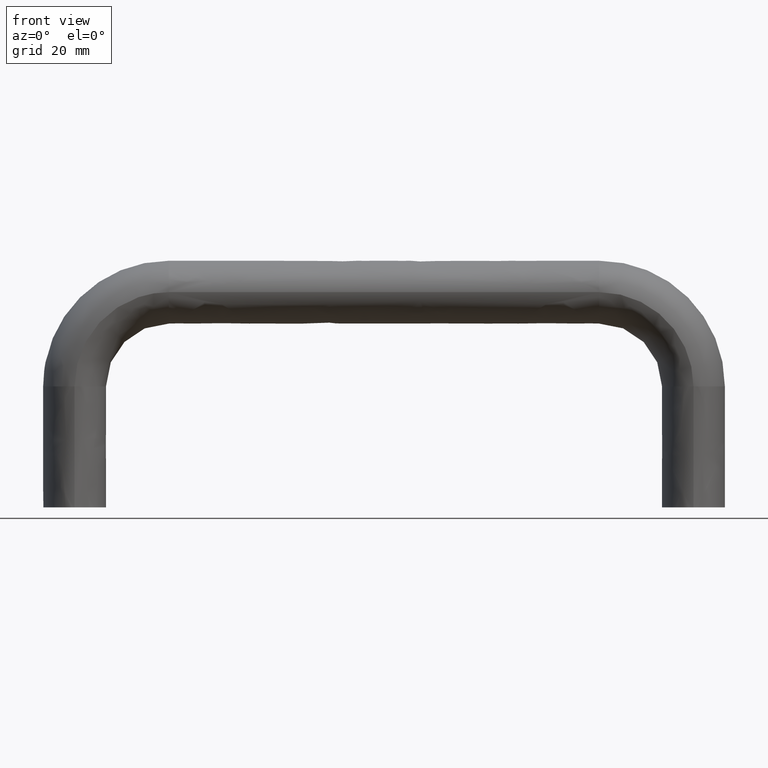
[diagram: clean part render]
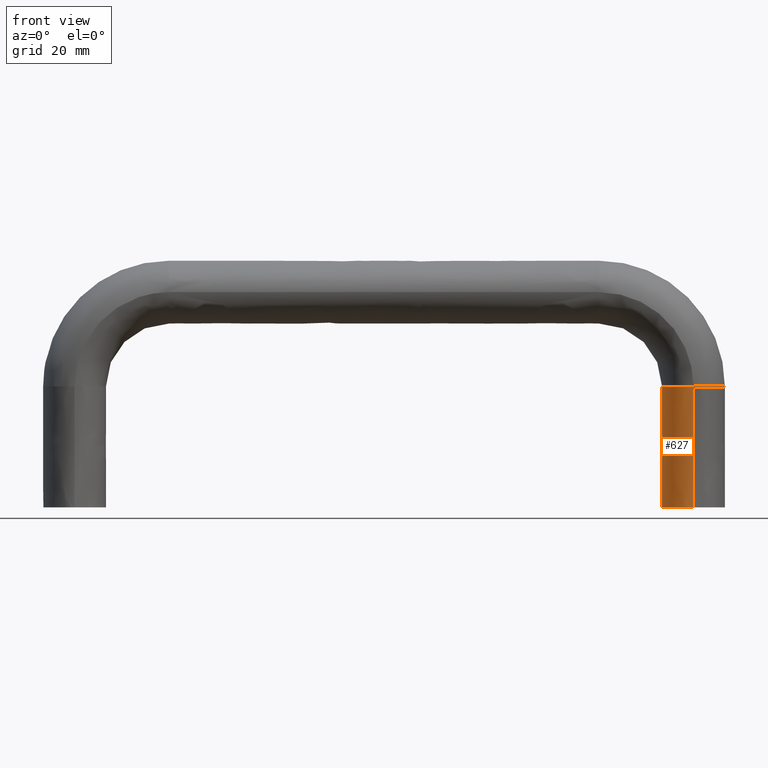
[diagram: same view with one face highlighted and labeled with its STEP entity id]
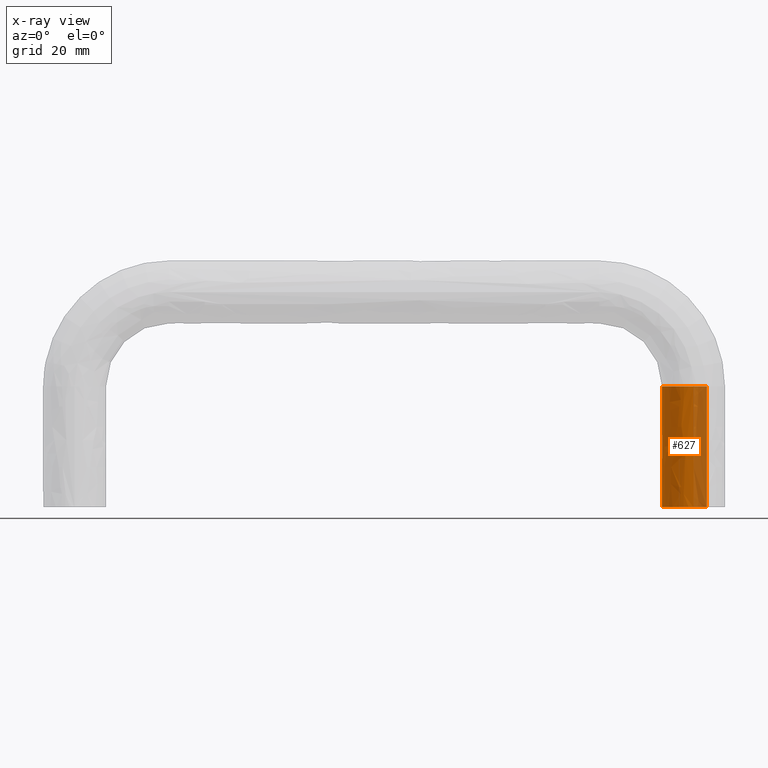
[diagram: x-ray of the same camera — body ghosted, the highlighted face saturated]
A machine part, front view. The second image highlights one B-rep face of the part: STEP entity #627.
The next image is the same camera in x-ray: the body ghosted, the highlighted face saturated — about 30% of this face is hidden behind the body in this view.
In plain terms, the highlighted face is a freeform B-spline surface patch.
Its self-contained STEP definition (entity closure, byte-faithful):
#457=CARTESIAN_POINT('',(130.765148685643200,9.039503756692850,25.0));
#458=VERTEX_POINT('',#457);
#459=CARTESIAN_POINT('',(128.000006999999810,-10.0,25.0));
#460=VERTEX_POINT('',#459);
#474=CARTESIAN_POINT('',(128.000006999999810,-10.0,2.244912E-030));
#475=VERTEX_POINT('',#474);
#476=CARTESIAN_POINT('',(128.000006999999810,-10.0,25.0));
#477=CARTESIAN_POINT('',(128.000113633782490,-10.0,16.666666669802851));
#478=CARTESIAN_POINT('',(128.000006999999810,-10.0,8.333333330977924));
#479=CARTESIAN_POINT('',(128.000006999999810,-10.0,9.022597E-030));
#480=B_SPLINE_CURVE_WITH_KNOTS('',3,(#476,#477,#478,#479),.UNSPECIFIED.,.F.,.U.,(4,4),(0.875162952136151,1.0),.UNSPECIFIED.);
#481=EDGE_CURVE('',#460,#475,#480,.T.);
#483=CARTESIAN_POINT('',(130.767738322028010,9.043088328509544,-2.464482E-016));
#484=VERTEX_POINT('',#483);
#503=CARTESIAN_POINT('',(130.765148685643200,9.039503756692850,25.0));
#504=CARTESIAN_POINT('',(130.766125675659200,9.040698613964571,16.666666670234040));
#505=CARTESIAN_POINT('',(130.766875109900010,9.041893471237698,8.333333330654064));
#506=CARTESIAN_POINT('',(130.767738322028010,9.043088328509544,-2.464482E-016));
#507=B_SPLINE_CURVE_WITH_KNOTS('',3,(#503,#504,#505,#506),.UNSPECIFIED.,.F.,.U.,(4,4),(0.875162952136151,1.0),.UNSPECIFIED.);
#508=EDGE_CURVE('',#458,#484,#507,.T.);
#513=CARTESIAN_POINT('',(128.000006999999810,-10.0,25.0));
#514=CARTESIAN_POINT('',(126.298310979305400,-10.0,25.0));
#515=CARTESIAN_POINT('',(124.607093718038400,-8.922269036098131,25.0));
#516=CARTESIAN_POINT('',(122.200532126536000,-5.219866587632820,25.0));
#517=CARTESIAN_POINT('',(121.500006999999800,-2.617993877991495,25.0));
#518=CARTESIAN_POINT('',(121.500006999999800,2.617993877991495,25.0));
#519=CARTESIAN_POINT('',(122.200532126536000,5.219866587632830,25.0));
#520=CARTESIAN_POINT('',(124.607093718038400,8.922269036098131,25.0));
#521=CARTESIAN_POINT('',(126.298310979305400,10.0,25.0));
#522=CARTESIAN_POINT('',(128.952956771588700,10.0,25.0));
#523=CARTESIAN_POINT('',(129.902620404221100,9.662023569720375,25.0));
#524=CARTESIAN_POINT('',(130.765148685384700,9.039503756879462,25.0));
#525=CARTESIAN_POINT('',(128.000113633782490,-10.0,16.666666669802851));
#526=CARTESIAN_POINT('',(126.298412942534990,-10.0,16.666666669528649));
#527=CARTESIAN_POINT('',(124.607190375280000,-8.922269036098131,16.666666669238499));
#528=CARTESIAN_POINT('',(122.200620301681000,-5.219866587632820,16.666666668806950));
#529=CARTESIAN_POINT('',(121.500092470035400,-2.617993877991495,16.666666668677649));
#530=CARTESIAN_POINT('',(121.500092470035400,2.617993877991495,16.666666668677649));
#531=CARTESIAN_POINT('',(122.200620301681000,5.219866587632830,16.666666668806950));
#532=CARTESIAN_POINT('',(124.607190375343390,8.922269036098131,16.666666669238499));
#533=CARTESIAN_POINT('',(126.298412942534990,10.0,16.666666669528649));
#534=CARTESIAN_POINT('',(128.953066020881100,10.0,16.666666669956399));
#535=CARTESIAN_POINT('',(129.902732085082190,9.662023569720375,16.666666670103869));
#536=CARTESIAN_POINT('',(130.765262463272710,9.039503756879462,16.666666670234040));
#537=CARTESIAN_POINT('',(128.000006999999810,-10.0,8.333333330977924));
#538=CARTESIAN_POINT('',(126.298310979305400,-10.0,8.333333331183860));
#539=CARTESIAN_POINT('',(124.607093718038400,-8.922269036098131,8.333333331401761));
#540=CARTESIAN_POINT('',(122.200532126536000,-5.219866587632820,8.333333331725909));
#541=CARTESIAN_POINT('',(121.500006999999800,-2.617993877991495,8.333333331822999));
#542=CARTESIAN_POINT('',(121.500006999999800,2.617993877991495,8.333333331822999));
#543=CARTESIAN_POINT('',(122.200532126536000,5.219866587632830,8.333333331725909));
#544=CARTESIAN_POINT('',(124.607093718038400,8.922269036098131,8.333333331401761));
#545=CARTESIAN_POINT('',(126.298310979305400,10.0,8.333333331183860));
#546=CARTESIAN_POINT('',(128.952956771588700,10.0,8.333333330862601));
#547=CARTESIAN_POINT('',(129.902620404221100,9.662023569720375,8.333333330751838));
#548=CARTESIAN_POINT('',(130.765148685384700,9.039503756879462,8.333333330654064));
#549=CARTESIAN_POINT('',(128.000006999999810,-10.0,9.003722E-030));
#550=CARTESIAN_POINT('',(126.298310979305400,-10.0,3.027664E-016));
#551=CARTESIAN_POINT('',(124.607093718038400,-8.922269036098131,6.036683E-016));
#552=CARTESIAN_POINT('',(122.200532126536000,-5.219866587632820,1.031845E-015));
#553=CARTESIAN_POINT('',(121.500006999999800,-2.617993877991495,1.156482E-015));
#554=CARTESIAN_POINT('',(121.500006999999800,2.617993877991495,1.156482E-015));
#555=CARTESIAN_POINT('',(122.200532126536000,5.219866587632830,1.031845E-015));
#556=CARTESIAN_POINT('',(124.607093718038400,8.922269036098131,6.036683E-016));
#557=CARTESIAN_POINT('',(126.298310979305400,10.0,3.027664E-016));
#558=CARTESIAN_POINT('',(128.952956771588700,10.0,-1.695492E-016));
#559=CARTESIAN_POINT('',(129.902620404221100,9.662023569720375,-3.385137E-016));
#560=CARTESIAN_POINT('',(130.765148685384700,9.039503756879462,-4.919750E-016));
#561=B_SPLINE_SURFACE_WITH_KNOTS('',3,3,((#513,#525,#537,#549),(#514,#526,#538,#550),(#515,#527,#539,#551),(#516,#528,#540,#552),(#517,#529,#541,#553),(#518,#530,#542,#554),(#519,#531,#543,#555),(#520,#532,#544,#556),(#521,#533,#545,#557),(#522,#534,#546,#558),(#523,#535,#547,#559),(#524,#536,#548,#560)),.UNSPECIFIED.,.F.,.F.,.U.,(4,2,2,2,2,4),(4,4),(0.0,7.693622043919496,15.387244087838990,23.080866131758491,30.774488175677980,35.082916520272903),(0.0,25.000000003826290),.UNSPECIFIED.);
#562=CARTESIAN_POINT('',(128.000006999999810,10.0,25.0));
#563=VERTEX_POINT('',#562);
#564=CARTESIAN_POINT('',(128.000006999999810,10.0,25.0));
#565=CARTESIAN_POINT('',(128.952956771779100,10.0,25.0));
#566=CARTESIAN_POINT('',(129.902620404600700,9.662023569585280,25.0));
#567=CARTESIAN_POINT('',(130.765148685643200,9.039503756692850,25.0));
#568=B_SPLINE_CURVE_WITH_KNOTS('',3,(#564,#565,#566,#567),.UNSPECIFIED.,.F.,.U.,(4,4),(0.500000000000000,0.570000000013990),.UNSPECIFIED.);
#569=EDGE_CURVE('',#563,#458,#568,.T.);
#570=ORIENTED_EDGE('',*,*,#569,.T.);
#571=ORIENTED_EDGE('',*,*,#508,.T.);
#572=CARTESIAN_POINT('',(128.000006999999810,10.0,8.618537E-030));
#573=VERTEX_POINT('',#572);
#574=CARTESIAN_POINT('',(128.000006999999810,10.0,8.618537E-030));
#575=CARTESIAN_POINT('',(129.291915429159390,9.998305116528963,-1.271980E-016));
#576=CARTESIAN_POINT('',(130.485151365502300,9.235614506326396,-2.238775E-016));
#577=CARTESIAN_POINT('',(130.628461118032790,9.144014011171633,-2.354889E-016));
#578=CARTESIAN_POINT('',(130.767738322028010,9.043088328509544,-2.464482E-016));
#579=B_SPLINE_CURVE_WITH_KNOTS('',2,(#574,#575,#576,#577,#578),.UNSPECIFIED.,.F.,.U.,(3,2,3),(0.0,0.125000000000000,0.140017178929429),.UNSPECIFIED.);
#580=EDGE_CURVE('',#573,#484,#579,.T.);
#581=ORIENTED_EDGE('',*,*,#580,.F.);
#582=CARTESIAN_POINT('',(128.000006999999810,-9.999999999999991,1.614772E-029));
#583=CARTESIAN_POINT('',(126.707017830758600,-9.999801078588824,2.300491E-016));
#584=CARTESIAN_POINT('',(125.512564689626700,-9.238795325112877,4.425666E-016));
#585=CARTESIAN_POINT('',(124.318466070474100,-8.478015443424365,6.550211E-016));
#586=CARTESIAN_POINT('',(123.403812922287200,-7.071067811865467,8.177565E-016));
#587=CARTESIAN_POINT('',(122.489849254913100,-5.665180760919563,9.803692E-016));
#588=CARTESIAN_POINT('',(121.994790038676400,-3.826834323650910,1.068450E-015));
#589=CARTESIAN_POINT('',(121.500104006350000,-1.989873662647719,1.156465E-015));
#590=CARTESIAN_POINT('',(121.500006999999800,2.910405E-015,1.156482E-015));
#591=CARTESIAN_POINT('',(121.499910066774600,1.988373662543318,1.156500E-015));
#592=CARTESIAN_POINT('',(121.994790038676400,3.826834323650904,1.068450E-015));
#593=CARTESIAN_POINT('',(122.489296961766400,5.663909122318558,9.804675E-016));
#594=CARTESIAN_POINT('',(123.403812922287200,7.071067811865470,8.177565E-016));
#595=CARTESIAN_POINT('',(124.317639505371200,8.477165761641208,6.551681E-016));
#596=CARTESIAN_POINT('',(125.512564689626700,9.238795325112868,4.425666E-016));
#597=CARTESIAN_POINT('',(126.706511052322600,9.999801000623179,2.301393E-016));
#598=CARTESIAN_POINT('',(128.000006999999810,9.999999999999996,8.618537E-030));
#599=B_SPLINE_CURVE_WITH_KNOTS('',2,(#582,#583,#584,#585,#586,#587,#588,#589,#590,#591,#592,#593,#594,#595,#596,#597,#598),.UNSPECIFIED.,.F.,.U.,(3,2,2,2,2,2,2,2,3),(0.0,0.125000000000000,0.250000000000000,0.375000000000000,0.500000000000000,0.625000000000000,0.750000000000000,0.875000000000000,1.0),.UNSPECIFIED.);
#600=EDGE_CURVE('',#475,#573,#599,.T.);
#601=ORIENTED_EDGE('',*,*,#600,.F.);
#602=ORIENTED_EDGE('',*,*,#481,.F.);
#603=CARTESIAN_POINT('',(124.870789612510190,8.755444309227862,25.0));
#604=VERTEX_POINT('',#603);
#605=CARTESIAN_POINT('',(128.000006999999810,-10.0,25.0));
#606=CARTESIAN_POINT('',(126.298310979305400,-10.0,25.0));
#607=CARTESIAN_POINT('',(124.607093718038400,-8.922269036098131,25.0));
#608=CARTESIAN_POINT('',(122.200532126536000,-5.219866587632820,25.0));
#609=CARTESIAN_POINT('',(121.500006999999800,-2.617993877991495,25.0));
#610=CARTESIAN_POINT('',(121.500006999999800,2.617993877991495,25.0));
#611=CARTESIAN_POINT('',(122.200532126536000,5.219866587632830,25.0));
#612=CARTESIAN_POINT('',(123.836994008625690,7.737500252386184,25.0));
#613=CARTESIAN_POINT('',(124.333411660856400,8.303690947229100,25.0));
#614=CARTESIAN_POINT('',(124.870789612510190,8.755444309227862,25.0));
#615=B_SPLINE_CURVE_WITH_KNOTS('',3,(#605,#606,#607,#608,#609,#610,#611,#612,#613,#614),.UNSPECIFIED.,.F.,.U.,(4,2,2,2,4),(0.0,0.125000000000000,0.250000000000000,0.375000000000000,0.419999999986289),.UNSPECIFIED.);
#616=EDGE_CURVE('',#460,#604,#615,.T.);
#617=ORIENTED_EDGE('',*,*,#616,.T.);
#618=CARTESIAN_POINT('',(124.870789612510190,8.755444309227862,25.0));
#619=CARTESIAN_POINT('',(125.826128193000600,9.558561397034485,25.0));
#620=CARTESIAN_POINT('',(126.910921546568700,10.0,25.0));
#621=CARTESIAN_POINT('',(128.000006999999810,10.0,25.0));
#622=B_SPLINE_CURVE_WITH_KNOTS('',3,(#618,#619,#620,#621),.UNSPECIFIED.,.F.,.U.,(4,4),(0.419999999986289,0.500000000000000),.UNSPECIFIED.);
#623=EDGE_CURVE('',#604,#563,#622,.T.);
#624=ORIENTED_EDGE('',*,*,#623,.T.);
#625=EDGE_LOOP('',(#570,#571,#581,#601,#602,#617,#624));
#626=FACE_OUTER_BOUND('',#625,.T.);
#627=ADVANCED_FACE('',(#626),#561,.T.);